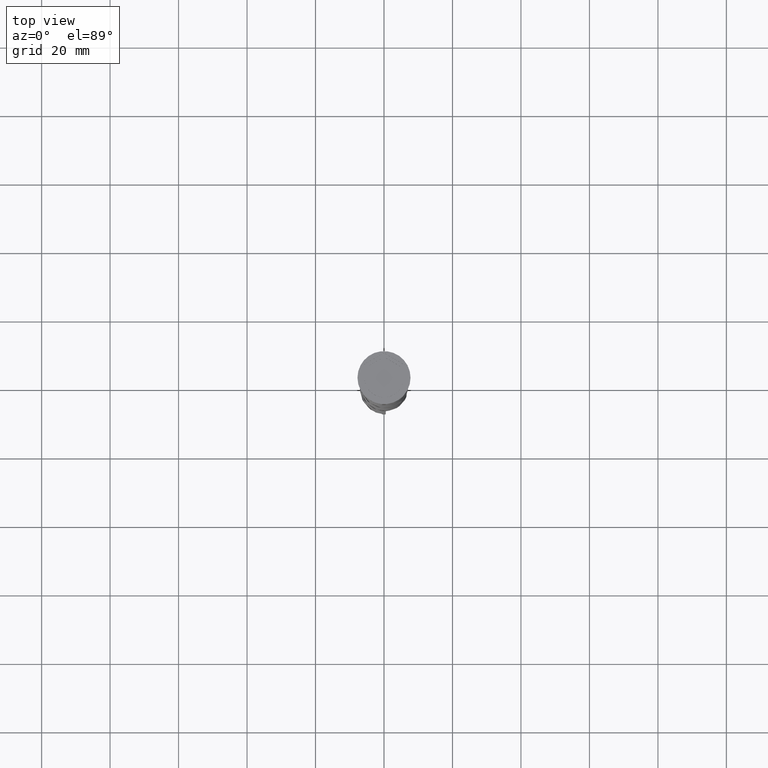
[diagram: clean part render]
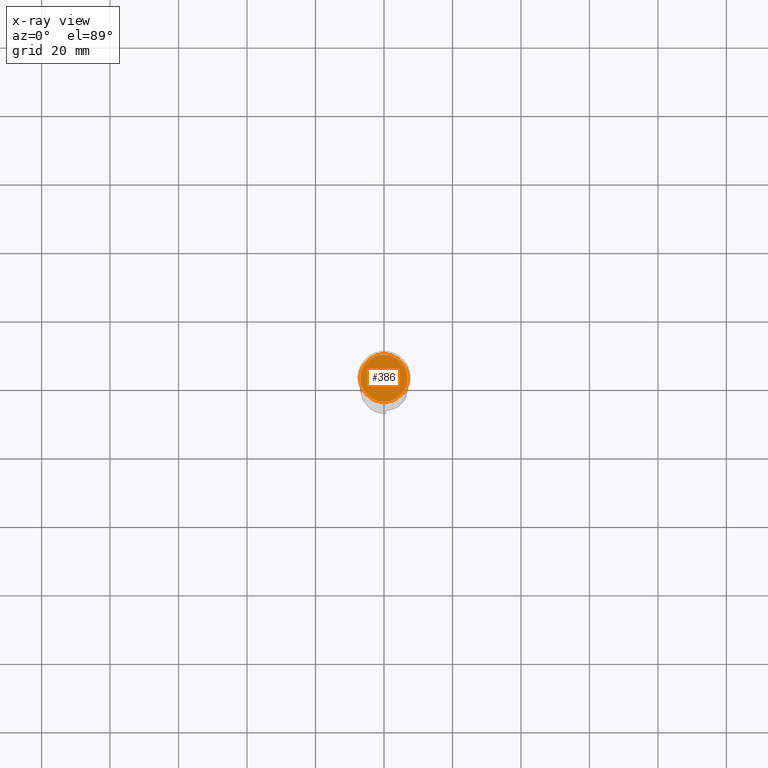
[diagram: x-ray — body ghosted, one internal face saturated and labeled with its STEP entity id]
A machine part, top view, then the same camera in x-ray: the body is ghosted and one INTERNAL B-rep face — a face not visible from any outside direction — is saturated and labeled: STEP entity #386.
In plain terms, the highlighted planar face has unit normal (0, 0, -1).
Its self-contained STEP definition (entity closure, byte-faithful):
#4 = EDGE_CURVE ( 'NONE', #695, #3191, #234, .T. ) ;
#234 = CIRCLE ( 'NONE', #2382, 6.950000000000001066 ) ;
#271 = DIRECTION ( 'NONE',  ( -1.000000000000000000, 0.000000000000000000, -0.000000000000000000 ) ) ;
#386 = ADVANCED_FACE ( 'NONE', ( #3772 ), #3233, .F. ) ;
#591 = CARTESIAN_POINT ( 'NONE',  ( 6.950000000000001066, 8.694992273946209718E-16, -10.50000000000000178 ) ) ;
#695 = VERTEX_POINT ( 'NONE', #3053 ) ;
#781 = CARTESIAN_POINT ( 'NONE',  ( 0.000000000000000000, 0.000000000000000000, -10.50000000000000178 ) ) ;
#908 = DIRECTION ( 'NONE',  ( -0.000000000000000000, -0.000000000000000000, 1.000000000000000000 ) ) ;
#936 = AXIS2_PLACEMENT_3D ( 'NONE', #781, #2812, #2528 ) ;
#1137 = EDGE_LOOP ( 'NONE', ( #1615, #2934 ) ) ;
#1304 = CIRCLE ( 'NONE', #936, 6.950000000000001066 ) ;
#1615 = ORIENTED_EDGE ( 'NONE', *, *, #4, .T. ) ;
#2056 = CARTESIAN_POINT ( 'NONE',  ( 0.000000000000000000, 0.000000000000000000, -10.50000000000000178 ) ) ;
#2322 = DIRECTION ( 'NONE',  ( 0.000000000000000000, 0.000000000000000000, -1.000000000000000000 ) ) ;
#2382 = AXIS2_PLACEMENT_3D ( 'NONE', #2056, #908, #3237 ) ;
#2528 = DIRECTION ( 'NONE',  ( -1.000000000000000000, 0.000000000000000000, 0.000000000000000000 ) ) ;
#2573 = AXIS2_PLACEMENT_3D ( 'NONE', #2881, #2322, #271 ) ;
#2812 = DIRECTION ( 'NONE',  ( -0.000000000000000000, -0.000000000000000000, 1.000000000000000000 ) ) ;
#2881 = CARTESIAN_POINT ( 'NONE',  ( 0.000000000000000000, 0.000000000000000000, -10.50000000000000178 ) ) ;
#2934 = ORIENTED_EDGE ( 'NONE', *, *, #3580, .T. ) ;
#3053 = CARTESIAN_POINT ( 'NONE',  ( -6.950000000000001066, 0.000000000000000000, -10.50000000000000178 ) ) ;
#3191 = VERTEX_POINT ( 'NONE', #591 ) ;
#3233 = PLANE ( 'NONE',  #2573 ) ;
#3237 = DIRECTION ( 'NONE',  ( -1.000000000000000000, 0.000000000000000000, 0.000000000000000000 ) ) ;
#3580 = EDGE_CURVE ( 'NONE', #3191, #695, #1304, .T. ) ;
#3772 = FACE_OUTER_BOUND ( 'NONE', #1137, .T. ) ;